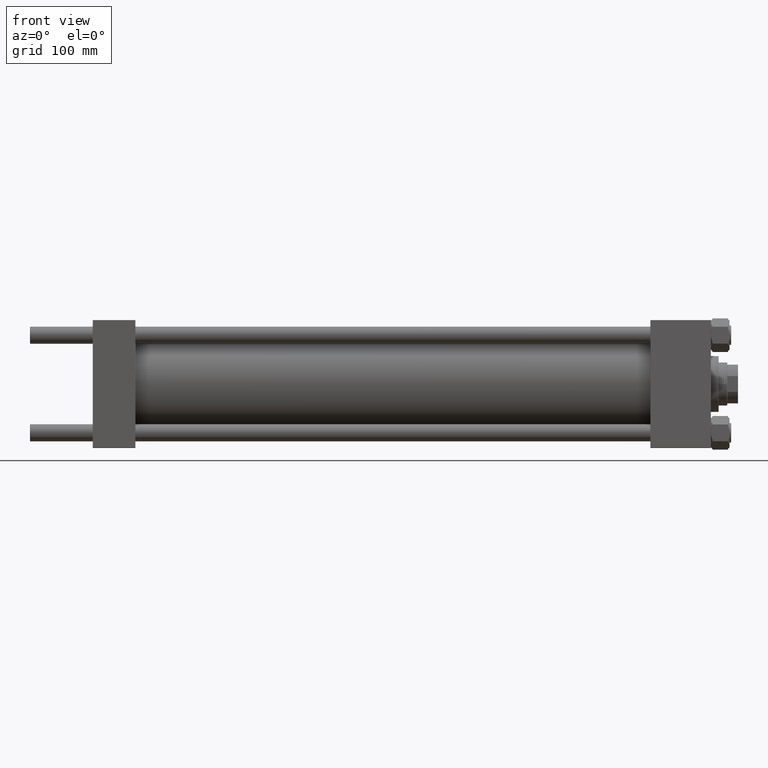
[diagram: clean part render]
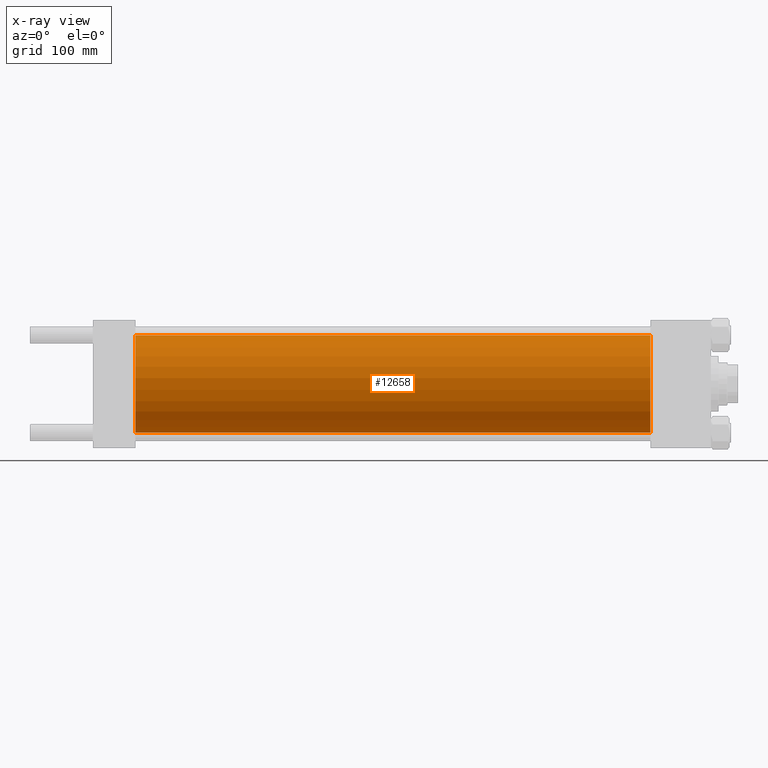
[diagram: x-ray — body ghosted, one internal face saturated and labeled with its STEP entity id]
A machine part, front view, then the same camera in x-ray: the body is ghosted and one INTERNAL B-rep face — a face not visible from any outside direction — is saturated and labeled: STEP entity #12658.
In plain terms, the highlighted cylindrical surface (partial cylindrical patch) has radius 62.5 mm, axis along (-1, -0, -0).
Its self-contained STEP definition (entity closure, byte-faithful):
#905 = CARTESIAN_POINT ( 'NONE',  ( 719.0000000000001137, 7.654042494670957804E-15, -62.50000000000000000 ) ) ;
#3066 = ORIENTED_EDGE ( 'NONE', *, *, #48087, .F. ) ;
#4155 = ORIENTED_EDGE ( 'NONE', *, *, #31628, .T. ) ;
#4373 = AXIS2_PLACEMENT_3D ( 'NONE', #28808, #44308, #9715 ) ;
#9059 = DIRECTION ( 'NONE',  ( 0.000000000000000000, 0.000000000000000000, -1.000000000000000000 ) ) ;
#9283 = CARTESIAN_POINT ( 'NONE',  ( 55.00000000000000000, 0.000000000000000000, 62.50000000000000000 ) ) ;
#9404 = EDGE_CURVE ( 'NONE', #43447, #25977, #37635, .T. ) ;
#9715 = DIRECTION ( 'NONE',  ( 0.000000000000000000, 0.000000000000000000, -1.000000000000000000 ) ) ;
#10076 = CARTESIAN_POINT ( 'NONE',  ( 55.00000000000000000, 0.000000000000000000, 0.000000000000000000 ) ) ;
#11330 = ORIENTED_EDGE ( 'NONE', *, *, #18241, .T. ) ;
#11785 = CIRCLE ( 'NONE', #19940, 62.50000000000000000 ) ;
#12658 = ADVANCED_FACE ( 'NONE', ( #23491 ), #42309, .F. ) ;
#13729 = DIRECTION ( 'NONE',  ( -1.000000000000000000, -0.000000000000000000, -0.000000000000000000 ) ) ;
#13844 = ORIENTED_EDGE ( 'NONE', *, *, #9404, .F. ) ;
#15726 = CIRCLE ( 'NONE', #4373, 62.50000000000000000 ) ;
#15843 = CARTESIAN_POINT ( 'NONE',  ( 719.0000000000001137, 0.000000000000000000, 0.000000000000000000 ) ) ;
#16232 = VERTEX_POINT ( 'NONE', #29605 ) ;
#17552 = CARTESIAN_POINT ( 'NONE',  ( 719.0000000000001137, 0.000000000000000000, 62.50000000000000000 ) ) ;
#18241 = EDGE_CURVE ( 'NONE', #43447, #28536, #15726, .T. ) ;
#18890 = LINE ( 'NONE', #26551, #25771 ) ;
#19657 = DIRECTION ( 'NONE',  ( 0.000000000000000000, 0.000000000000000000, 1.000000000000000000 ) ) ;
#19940 = AXIS2_PLACEMENT_3D ( 'NONE', #10076, #48482, #9059 ) ;
#22468 = DIRECTION ( 'NONE',  ( -1.000000000000000000, -0.000000000000000000, -0.000000000000000000 ) ) ;
#23243 = DIRECTION ( 'NONE',  ( -1.000000000000000000, -0.000000000000000000, -0.000000000000000000 ) ) ;
#23491 = FACE_OUTER_BOUND ( 'NONE', #32107, .T. ) ;
#25771 = VECTOR ( 'NONE', #22468, 1000.000000000000000 ) ;
#25977 = VERTEX_POINT ( 'NONE', #9283 ) ;
#26551 = CARTESIAN_POINT ( 'NONE',  ( 719.0000000000001137, 7.654042494670957804E-15, -62.50000000000000000 ) ) ;
#28536 = VERTEX_POINT ( 'NONE', #905 ) ;
#28808 = CARTESIAN_POINT ( 'NONE',  ( 719.0000000000001137, 0.000000000000000000, 0.000000000000000000 ) ) ;
#29258 = VECTOR ( 'NONE', #13729, 1000.000000000000000 ) ;
#29364 = AXIS2_PLACEMENT_3D ( 'NONE', #15843, #23243, #19657 ) ;
#29605 = CARTESIAN_POINT ( 'NONE',  ( 55.00000000000000000, 7.654042494670957804E-15, -62.50000000000000000 ) ) ;
#31628 = EDGE_CURVE ( 'NONE', #28536, #16232, #18890, .T. ) ;
#32107 = EDGE_LOOP ( 'NONE', ( #11330, #4155, #3066, #13844 ) ) ;
#37635 = LINE ( 'NONE', #17552, #29258 ) ;
#42309 = CYLINDRICAL_SURFACE ( 'NONE', #29364, 62.50000000000000000 ) ;
#43447 = VERTEX_POINT ( 'NONE', #48705 ) ;
#44308 = DIRECTION ( 'NONE',  ( 1.000000000000000000, 0.000000000000000000, 0.000000000000000000 ) ) ;
#48087 = EDGE_CURVE ( 'NONE', #25977, #16232, #11785, .T. ) ;
#48482 = DIRECTION ( 'NONE',  ( 1.000000000000000000, 0.000000000000000000, 0.000000000000000000 ) ) ;
#48705 = CARTESIAN_POINT ( 'NONE',  ( 719.0000000000001137, 0.000000000000000000, 62.50000000000000000 ) ) ;